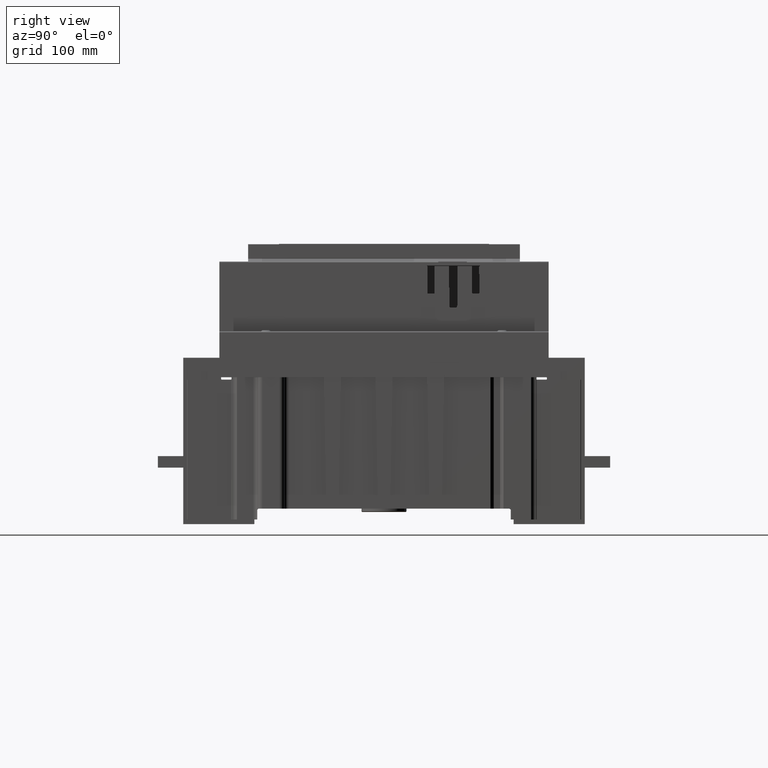
[diagram: clean part render]
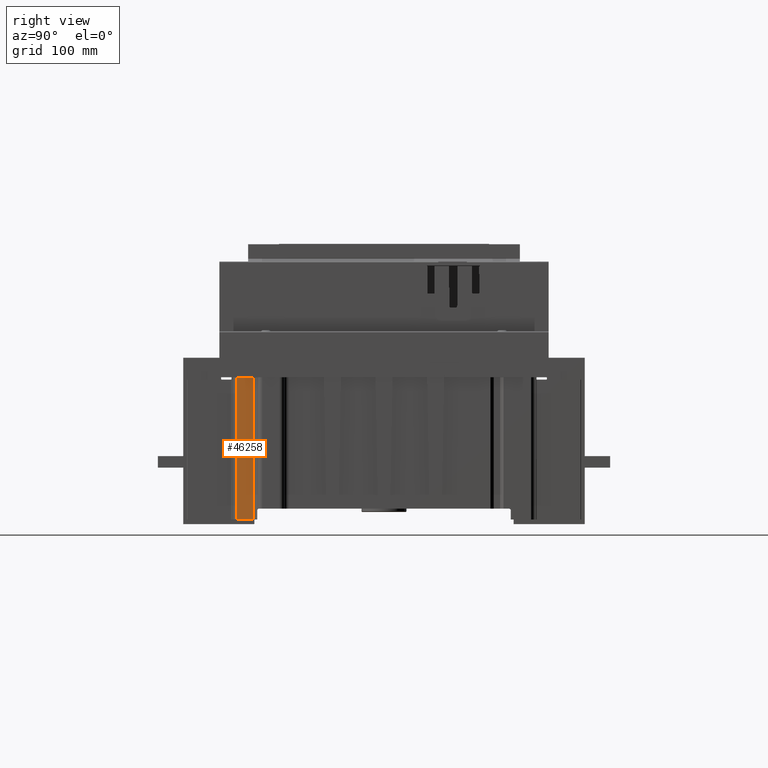
[diagram: same view with one face highlighted and labeled with its STEP entity id]
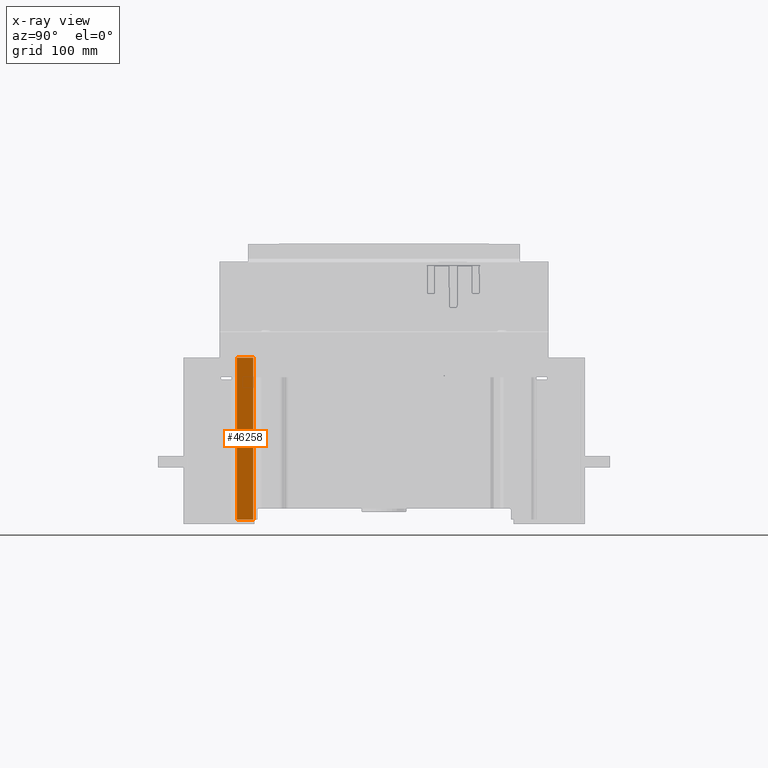
[diagram: x-ray of the same camera — body ghosted, the highlighted face saturated]
A machine part, right view. The second image highlights one B-rep face of the part: STEP entity #46258.
The next image is the same camera in x-ray: the body ghosted, the highlighted face saturated — about 0% of this face is hidden behind the body in this view.
In plain terms, the highlighted planar face has unit normal (1, 0, 0).
Its self-contained STEP definition (entity closure, byte-faithful):
#5970=DIRECTION('',(0.E0,1.E0,0.E0));
#5971=VECTOR('',#5970,1.415000000001E1);
#5972=CARTESIAN_POINT('',(1.45E2,-1.2815E2,-2.0445E2));
#5973=LINE('',#5972,#5971);
#13958=DIRECTION('',(1.E0,-9.211859013968E-14,0.E0));
#13959=VECTOR('',#13958,1.41E2);
#13960=CARTESIAN_POINT('',(4.E0,-1.14E2,-2.0445E2));
#13961=LINE('',#13960,#13959);
#13985=DIRECTION('',(0.E0,1.E0,0.E0));
#13986=VECTOR('',#13985,1.415000000003E1);
#13987=CARTESIAN_POINT('',(4.E0,-1.2815E2,-2.0445E2));
#13988=LINE('',#13987,#13986);
#13992=DIRECTION('',(1.E0,0.E0,0.E0));
#13993=VECTOR('',#13992,1.41E2);
#13994=CARTESIAN_POINT('',(4.E0,-1.2815E2,-2.0445E2));
#13995=LINE('',#13994,#13993);
#31910=CARTESIAN_POINT('',(1.45E2,-1.2815E2,-2.0445E2));
#31911=VERTEX_POINT('',#31910);
#31912=CARTESIAN_POINT('',(1.45E2,-1.14E2,-2.0445E2));
#31913=VERTEX_POINT('',#31912);
#35156=CARTESIAN_POINT('',(4.E0,-1.2815E2,-2.0445E2));
#35157=VERTEX_POINT('',#35156);
#35158=CARTESIAN_POINT('',(4.E0,-1.14E2,-2.0445E2));
#35159=VERTEX_POINT('',#35158);
#46246=CARTESIAN_POINT('',(1.251895190428E-14,-1.2815E2,-2.0445E2));
#46247=DIRECTION('',(0.E0,0.E0,-1.E0));
#46248=DIRECTION('',(0.E0,1.E0,0.E0));
#46249=AXIS2_PLACEMENT_3D('',#46246,#46247,#46248);
#46250=PLANE('',#46249);
#46251=ORIENTED_EDGE('',*,*,#38751,.F.);
#46253=ORIENTED_EDGE('',*,*,#46252,.T.);
#46254=ORIENTED_EDGE('',*,*,#40342,.T.);
#46255=ORIENTED_EDGE('',*,*,#46236,.F.);
#46256=EDGE_LOOP('',(#46251,#46253,#46254,#46255));
#46257=FACE_OUTER_BOUND('',#46256,.F.);
#38751=EDGE_CURVE('',#35157,#35159,#13988,.T.);
#40342=EDGE_CURVE('',#31911,#31913,#5973,.T.);
#46236=EDGE_CURVE('',#35159,#31913,#13961,.T.);
#46252=EDGE_CURVE('',#35157,#31911,#13995,.T.);
#46258=ADVANCED_FACE('',(#46257),#46250,.T.);